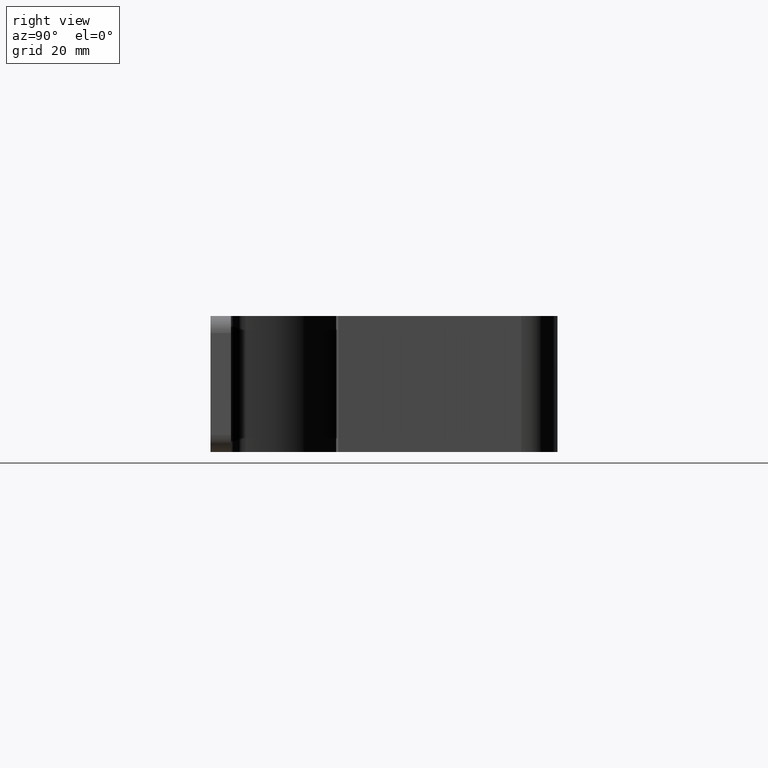
[diagram: clean part render]
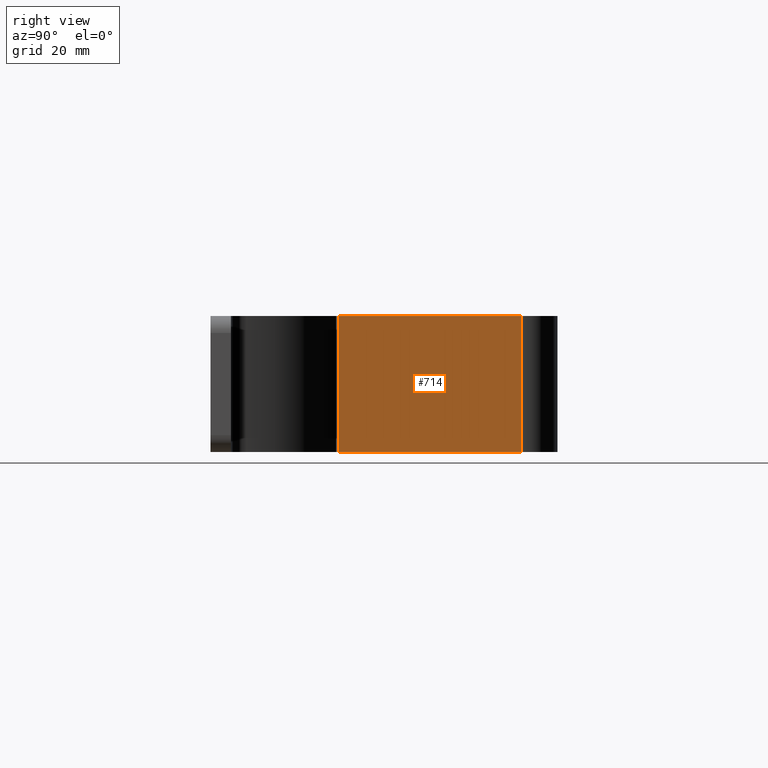
[diagram: same view with one face highlighted and labeled with its STEP entity id]
A machine part, right view. The second image highlights one B-rep face of the part: STEP entity #714.
In plain terms, the highlighted planar face has unit normal (-0.9939, -0.11, 0).
Its self-contained STEP definition (entity closure, byte-faithful):
#66 = VECTOR ( 'NONE', #1443, 1000.000000000000000 ) ;
#81 = VERTEX_POINT ( 'NONE', #1338 ) ;
#82 = CARTESIAN_POINT ( 'NONE',  ( 37.50000000000000000, 40.10246206829383908, 20.00000000000000000 ) ) ;
#198 = EDGE_CURVE ( 'NONE', #385, #81, #903, .T. ) ;
#219 = DIRECTION ( 'NONE',  ( -0.1100069531700306330, 0.9939308176398630179, 0.000000000000000000 ) ) ;
#275 = PLANE ( 'NONE',  #1610 ) ;
#277 = VECTOR ( 'NONE', #461, 1000.000000000000000 ) ;
#385 = VERTEX_POINT ( 'NONE', #82 ) ;
#439 = CARTESIAN_POINT ( 'NONE',  ( 37.50000000000000000, 40.10246206829383908, 20.00000000000000000 ) ) ;
#461 = DIRECTION ( 'NONE',  ( -0.000000000000000000, -0.000000000000000000, -1.000000000000000000 ) ) ;
#489 = EDGE_CURVE ( 'NONE', #81, #1253, #1310, .T. ) ;
#490 = EDGE_CURVE ( 'NONE', #385, #1530, #1580, .T. ) ;
#585 = DIRECTION ( 'NONE',  ( -0.9939308176398631289, -0.1100069531700306608, 0.000000000000000000 ) ) ;
#607 = CARTESIAN_POINT ( 'NONE',  ( 37.50000000000000000, 40.10246206829383908, 20.00000000000000000 ) ) ;
#714 = ADVANCED_FACE ( 'NONE', ( #1663 ), #275, .F. ) ;
#744 = ORIENTED_EDGE ( 'NONE', *, *, #490, .T. ) ;
#831 = ORIENTED_EDGE ( 'NONE', *, *, #489, .F. ) ;
#892 = CARTESIAN_POINT ( 'NONE',  ( 37.50000000000000000, 40.10246206829383908, 20.00000000000000000 ) ) ;
#903 = LINE ( 'NONE', #607, #1352 ) ;
#971 = ORIENTED_EDGE ( 'NONE', *, *, #1177, .T. ) ;
#976 = LINE ( 'NONE', #1679, #1495 ) ;
#997 = DIRECTION ( 'NONE',  ( 0.1100069531700306469, -0.9939308176398630179, 0.000000000000000000 ) ) ;
#1122 = DIRECTION ( 'NONE',  ( -0.1100069531700306330, 0.9939308176398630179, 0.000000000000000000 ) ) ;
#1173 = CARTESIAN_POINT ( 'NONE',  ( 31.55460445178760054, 93.82008343804044159, 20.00000000000000000 ) ) ;
#1177 = EDGE_CURVE ( 'NONE', #1530, #1253, #976, .T. ) ;
#1253 = VERTEX_POINT ( 'NONE', #1381 ) ;
#1310 = LINE ( 'NONE', #1173, #277 ) ;
#1332 = CARTESIAN_POINT ( 'NONE',  ( 37.50000000000000000, 40.10246206829383908, -20.00000000000000000 ) ) ;
#1338 = CARTESIAN_POINT ( 'NONE',  ( 31.55460445178760054, 93.82008343804044159, 20.00000000000000000 ) ) ;
#1343 = ORIENTED_EDGE ( 'NONE', *, *, #198, .F. ) ;
#1352 = VECTOR ( 'NONE', #219, 1000.000000000000114 ) ;
#1381 = CARTESIAN_POINT ( 'NONE',  ( 31.55460445178760054, 93.82008343804044159, -20.00000000000000000 ) ) ;
#1443 = DIRECTION ( 'NONE',  ( -0.000000000000000000, -0.000000000000000000, -1.000000000000000000 ) ) ;
#1495 = VECTOR ( 'NONE', #1122, 1000.000000000000114 ) ;
#1530 = VERTEX_POINT ( 'NONE', #1332 ) ;
#1580 = LINE ( 'NONE', #892, #66 ) ;
#1610 = AXIS2_PLACEMENT_3D ( 'NONE', #439, #585, #997 ) ;
#1663 = FACE_OUTER_BOUND ( 'NONE', #1735, .T. ) ;
#1679 = CARTESIAN_POINT ( 'NONE',  ( 37.50000000000000000, 40.10246206829383908, -20.00000000000000000 ) ) ;
#1735 = EDGE_LOOP ( 'NONE', ( #971, #831, #1343, #744 ) ) ;